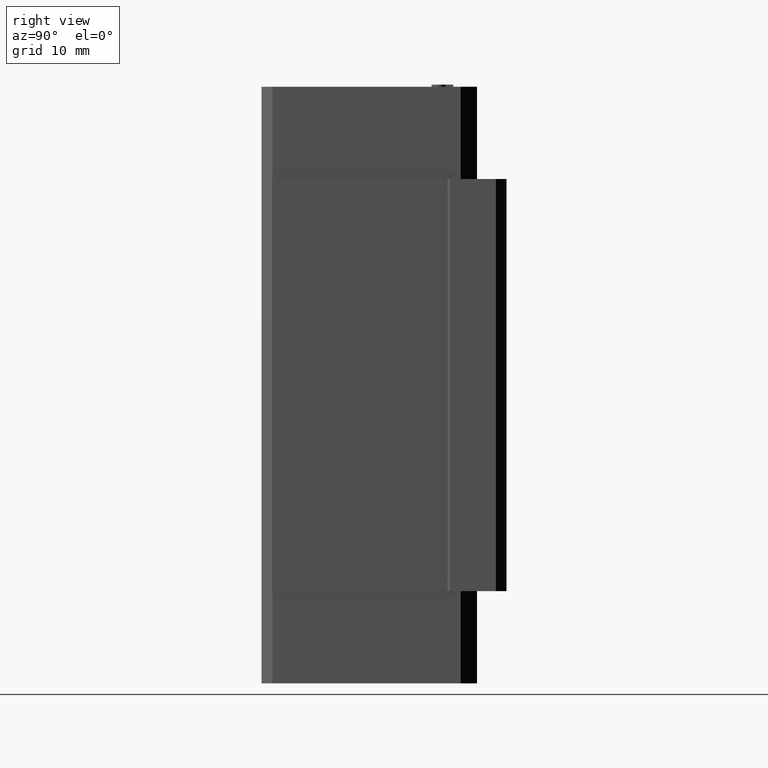
[diagram: clean part render]
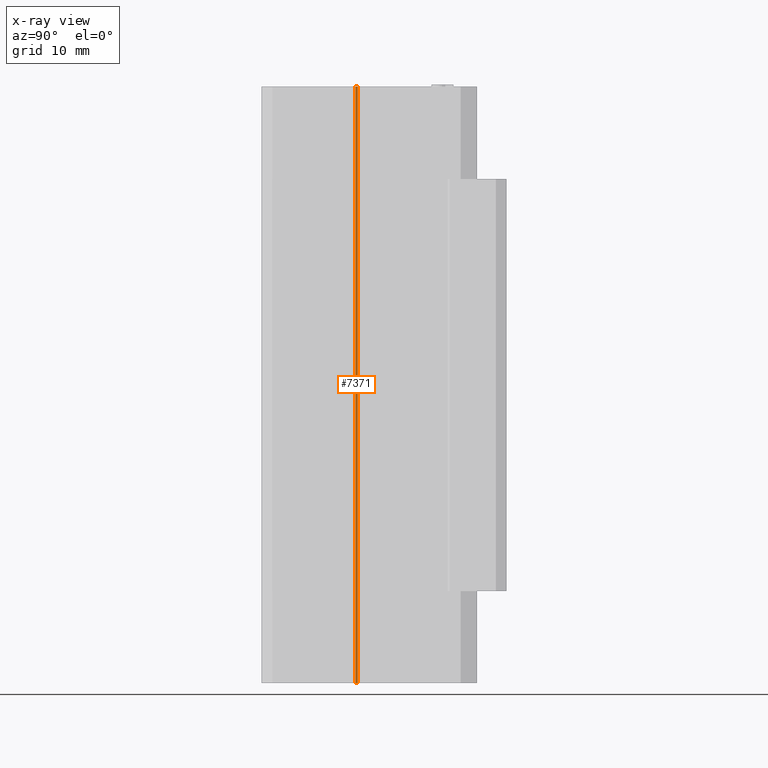
[diagram: x-ray — body ghosted, one internal face saturated and labeled with its STEP entity id]
A machine part, right view, then the same camera in x-ray: the body is ghosted and one INTERNAL B-rep face — a face not visible from any outside direction — is saturated and labeled: STEP entity #7371.
In plain terms, the highlighted cylindrical surface (edge-blend (fillet) strip) has radius 0.5 mm, axis along (0, 0, 1).
Its self-contained STEP definition (entity closure, byte-faithful):
#1812 = CARTESIAN_POINT ( 'NONE',  ( -11.49999999999977100, -3.298408781186918900, 42.00000000000000700 ) ) ;
#1813 = DIRECTION ( 'NONE',  ( 0.0000000000000000000, 0.0000000000000000000, 1.000000000000000000 ) ) ;
#1814 = VECTOR ( 'NONE', #1813, 1000.000000000000000 ) ;
#1815 = CARTESIAN_POINT ( 'NONE',  ( -11.50000000000000000, -3.298408781187000200, -29.00000000000000000 ) ) ;
#1816 = LINE ( 'NONE', #1815, #1814 ) ;
#1817 = CARTESIAN_POINT ( 'NONE',  ( -11.49999999999977100, -3.298408781186918900, -42.00000000000000000 ) ) ;
#7371 = ADVANCED_FACE ( 'NONE', ( #12164 ), #12163, .F. ) ;
#7372 = ORIENTED_EDGE ( 'NONE', *, *, #8616, .F. ) ;
#7373 = ORIENTED_EDGE ( 'NONE', *, *, #7374, .F. ) ;
#7374 = EDGE_CURVE ( 'NONE', #7375, #8614, #12162, .T. ) ;
#7375 = VERTEX_POINT ( 'NONE', #12153 ) ;
#7376 = ORIENTED_EDGE ( 'NONE', *, *, #7377, .F. ) ;
#7377 = EDGE_CURVE ( 'NONE', #7378, #7375, #12152, .T. ) ;
#7378 = VERTEX_POINT ( 'NONE', #12148 ) ;
#7379 = ORIENTED_EDGE ( 'NONE', *, *, #7380, .F. ) ;
#7380 = EDGE_CURVE ( 'NONE', #8617, #7378, #12146, .T. ) ;
#8614 = VERTEX_POINT ( 'NONE', #1817 ) ;
#8616 = EDGE_CURVE ( 'NONE', #8614, #8617, #1816, .T. ) ;
#8617 = VERTEX_POINT ( 'NONE', #1812 ) ;
#12142 = DIRECTION ( 'NONE',  ( 1.000000000000000000, 0.0000000000000000000, 0.0000000000000000000 ) ) ;
#12143 = DIRECTION ( 'NONE',  ( 0.0000000000000000000, 0.0000000000000000000, -1.000000000000000000 ) ) ;
#12144 = CARTESIAN_POINT ( 'NONE',  ( -11.00000000000000000, -3.298408781187000200, 42.00000000000000700 ) ) ;
#12145 = AXIS2_PLACEMENT_3D ( 'NONE', #12144, #12143, #12142 ) ;
#12146 = CIRCLE ( 'NONE', #12145, 0.5000000000000004400 ) ;
#12148 = CARTESIAN_POINT ( 'NONE',  ( -11.35355339059133700, -2.944855390594337800, 42.00000000000000700 ) ) ;
#12149 = DIRECTION ( 'NONE',  ( 0.0000000000000000000, 0.0000000000000000000, -1.000000000000000000 ) ) ;
#12150 = VECTOR ( 'NONE', #12149, 1000.000000000000000 ) ;
#12151 = CARTESIAN_POINT ( 'NONE',  ( -11.35355339059000100, -2.944855390593000200, -29.00000000000000000 ) ) ;
#12152 = LINE ( 'NONE', #12151, #12150 ) ;
#12153 = CARTESIAN_POINT ( 'NONE',  ( -11.35355339059133700, -2.944855390594337800, -42.00000000000000000 ) ) ;
#12154 = DIRECTION ( 'NONE',  ( 1.000000000000000000, 0.0000000000000000000, 0.0000000000000000000 ) ) ;
#12155 = DIRECTION ( 'NONE',  ( 0.0000000000000000000, 0.0000000000000000000, 1.000000000000000000 ) ) ;
#12156 = CARTESIAN_POINT ( 'NONE',  ( -11.00000000000000000, -3.298408781187000200, -42.00000000000000000 ) ) ;
#12157 = AXIS2_PLACEMENT_3D ( 'NONE', #12156, #12155, #12154 ) ;
#12158 = DIRECTION ( 'NONE',  ( 1.000000000000000000, 0.0000000000000000000, 0.0000000000000000000 ) ) ;
#12159 = DIRECTION ( 'NONE',  ( 0.0000000000000000000, 0.0000000000000000000, 1.000000000000000000 ) ) ;
#12160 = CARTESIAN_POINT ( 'NONE',  ( -11.00000000000000000, -3.298408781187000200, -29.00000000000000000 ) ) ;
#12161 = AXIS2_PLACEMENT_3D ( 'NONE', #12160, #12159, #12158 ) ;
#12162 = CIRCLE ( 'NONE', #12157, 0.5000000000000004400 ) ;
#12163 = CYLINDRICAL_SURFACE ( 'NONE', #12161, 0.5000000000000004400 ) ;
#12164 = FACE_OUTER_BOUND ( 'NONE', #12774, .T. ) ;
#12774 = EDGE_LOOP ( 'NONE', ( #7372, #7373, #7376, #7379 ) ) ;